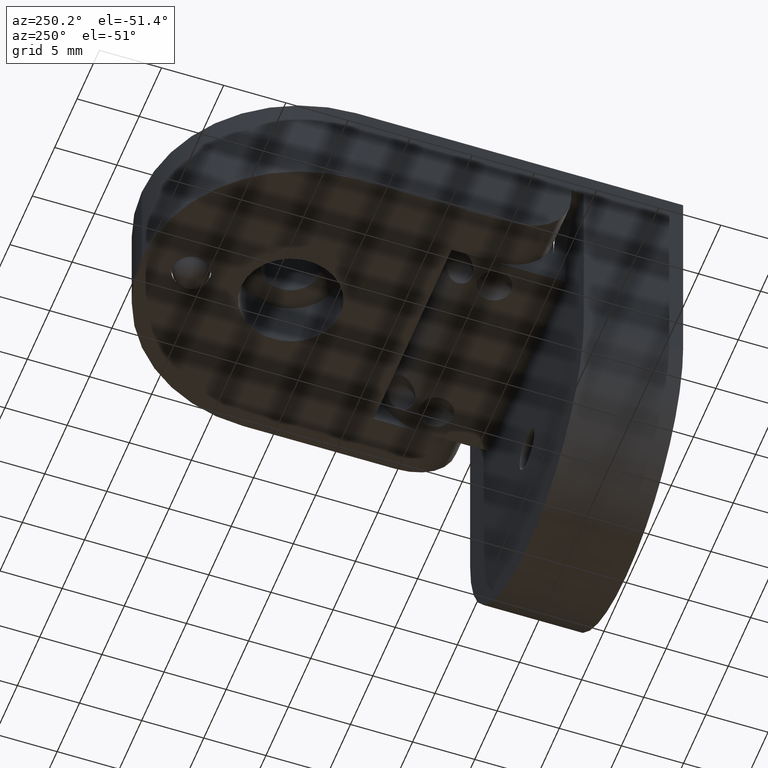
[diagram: clean part render]
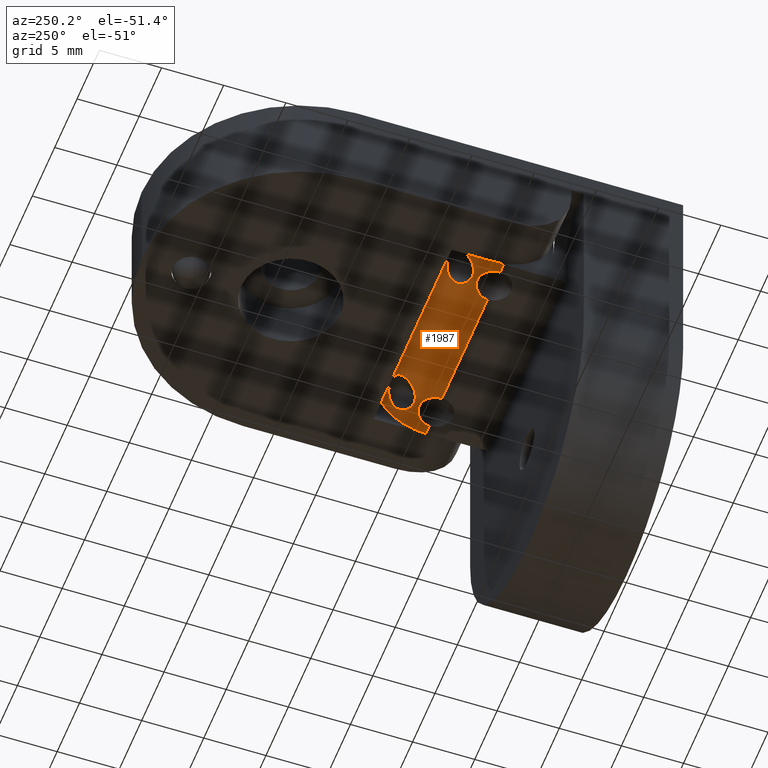
[diagram: same view with one face highlighted and labeled with its STEP entity id]
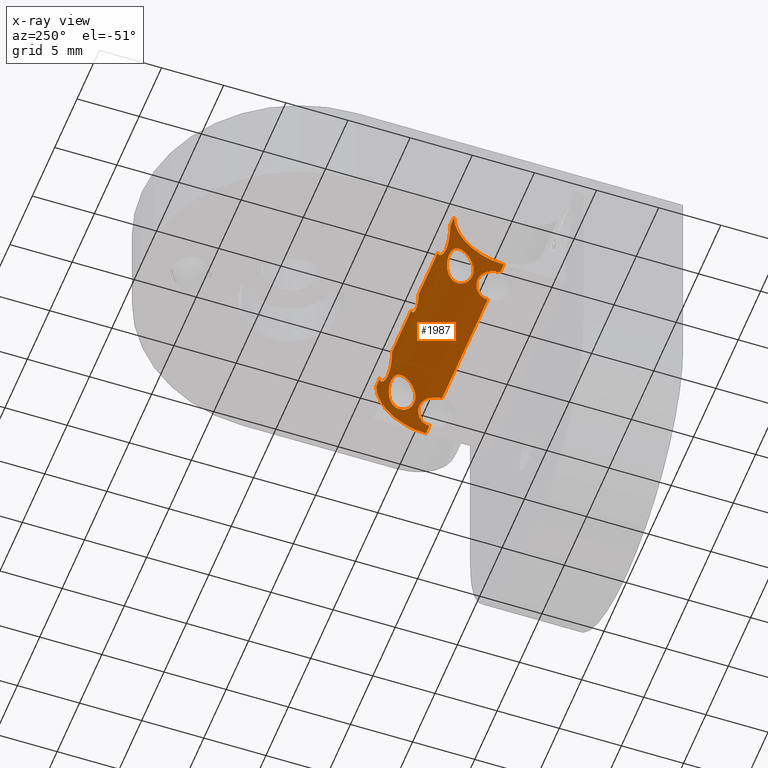
[diagram: x-ray of the same camera — body ghosted, the highlighted face saturated]
A machine part, auxiliary view. The second image highlights one B-rep face of the part: STEP entity #1987.
The next image is the same camera in x-ray: the body ghosted, the highlighted face saturated — about 0% of this face is hidden behind the body in this view.
In plain terms, the highlighted cylindrical surface (partial cylindrical patch) has radius 4 mm, axis along (-1, 0, 0).
Its self-contained STEP definition (entity closure, byte-faithful):
#15 = EDGE_CURVE ( 'NONE', #1526, #1642, #1170, .T. ) ;
#19 = CARTESIAN_POINT ( 'NONE',  ( 0.7999999999999885000, 17.00000000000000000, -4.000000000000001800 ) ) ;
#29 = CARTESIAN_POINT ( 'NONE',  ( -6.318382167521518200, 16.60091433237290600, -5.741669574684578900 ) ) ;
#38 = CARTESIAN_POINT ( 'NONE',  ( -6.139455517928616300, 16.58679575494123200, -5.771752067851502400 ) ) ;
#45 = CARTESIAN_POINT ( 'NONE',  ( -7.820452986001513700, 16.98952284015225400, -4.322431394678413400 ) ) ;
#51 = CARTESIAN_POINT ( 'NONE',  ( -5.886658571533004600, 16.54228656191221700, -5.858294435146447700 ) ) ;
#53 = CARTESIAN_POINT ( 'NONE',  ( 7.717006904152584400, 15.30491684231047100, -7.269960486161280300 ) ) ;
#60 = EDGE_CURVE ( 'NONE', #1171, #1526, #1228, .T. ) ;
#64 = ORIENTED_EDGE ( 'NONE', *, *, #808, .F. ) ;
#73 = AXIS2_PLACEMENT_3D ( 'NONE', #1293, #2566, #2613 ) ;
#79 = B_SPLINE_CURVE_WITH_KNOTS ( 'NONE', 3,
 ( #872, #672, #630, #622, #579, #2838, #494, #488, #479, #469, #460, #447, #428, #421, #408, #400, #390, #382, #277, #270, #234, #203, #51, #38, #29, #615 ),
 .UNSPECIFIED., .F., .F.,
 ( 4, 2, 2, 2, 2, 2, 2, 2, 2, 2, 2, 2, 4 ),
 ( 0.004300040857756044800, 0.004837284151750746400, 0.005374527445745448000, 0.005643149092742798800, 0.005911770739740149600, 0.006180392386737500400, 0.006449014033734854600, 0.006717635680732209800, 0.006986257327729564900, 0.007523500621724270800, 0.007792122268721623400, 0.008060743915718975000, 0.008597987209713680100 ),
 .UNSPECIFIED. ) ;
#83 = CARTESIAN_POINT ( 'NONE',  ( 6.140442905052626800, 16.58691800394359500, -5.771504403620029100 ) ) ;
#91 = VERTEX_POINT ( 'NONE', #2200 ) ;
#92 = CARTESIAN_POINT ( 'NONE',  ( 5.133476925075808800, 15.56721631803293900, -7.068742261541982200 ) ) ;
#94 = EDGE_CURVE ( 'NONE', #1705, #859, #2693, .T. ) ;
#95 = CARTESIAN_POINT ( 'NONE',  ( -7.716492937167974000, 16.27041913305914300, -6.304262048525910900 ) ) ;
#96 = VERTEX_POINT ( 'NONE', #2140 ) ;
#97 = ORIENTED_EDGE ( 'NONE', *, *, #358, .F. ) ;
#100 = CARTESIAN_POINT ( 'NONE',  ( 7.762212572483775800, 15.36769274088959700, -7.225018143983781700 ) ) ;
#108 = CARTESIAN_POINT ( 'NONE',  ( -6.679272370271416300, 14.74167003277798900, -7.600914536187041800 ) ) ;
#111 = CARTESIAN_POINT ( 'NONE',  ( 6.664705454402899900, 16.83306312811038600, -5.143515220238390900 ) ) ;
#124 = ORIENTED_EDGE ( 'NONE', *, *, #1289, .T. ) ;
#135 = CARTESIAN_POINT ( 'NONE',  ( -8.699999999999997500, 17.00000000000000000, -4.000000000000001800 ) ) ;
#143 = CARTESIAN_POINT ( 'NONE',  ( 7.195013254141744400, 14.88609512964043400, -7.527997512433667100 ) ) ;
#163 = CARTESIAN_POINT ( 'NONE',  ( -8.699999999999997500, 13.00000000000000200, -8.000000000000001800 ) ) ;
#168 = ORIENTED_EDGE ( 'NONE', *, *, #1536, .F. ) ;
#174 = ORIENTED_EDGE ( 'NONE', *, *, #15, .F. ) ;
#180 = LINE ( 'NONE', #853, #748 ) ;
#203 = CARTESIAN_POINT ( 'NONE',  ( -5.806221577427847600, 16.52372241819549400, -5.893574210680631300 ) ) ;
#210 = VERTEX_POINT ( 'NONE', #2498 ) ;
#213 = CARTESIAN_POINT ( 'NONE',  ( -7.876637756341044600, 17.00000000000000000, -4.163535705612695800 ) ) ;
#234 = CARTESIAN_POINT ( 'NONE',  ( -5.653069864009796500, 16.47790103064586400, -5.976473473862144600 ) ) ;
#264 = LINE ( 'NONE', #163, #1397 ) ;
#270 = CARTESIAN_POINT ( 'NONE',  ( -5.580092471060828200, 16.45039271049087000, -6.024478276832146800 ) ) ;
#277 = CARTESIAN_POINT ( 'NONE',  ( -5.381905048842762400, 16.35537258346926100, -6.180908853207314200 ) ) ;
#304 = CARTESIAN_POINT ( 'NONE',  ( -6.681706333184859400, 16.60091433237290200, -5.741669574684576300 ) ) ;
#312 = CARTESIAN_POINT ( 'NONE',  ( 5.806942411849719000, 16.52388838682907500, -5.893258442062800900 ) ) ;
#315 = CARTESIAN_POINT ( 'NONE',  ( 7.836682726186089600, 15.49774932186390000, -7.125373460790608100 ) ) ;
#316 = LINE ( 'NONE', #2666, #2569 ) ;
#318 = CARTESIAN_POINT ( 'NONE',  ( 5.273171676505652000, 15.30489333644196700, -7.273327754680172700 ) ) ;
#319 = CARTESIAN_POINT ( 'NONE',  ( -7.874001397343241700, 16.07517937900376700, -6.563194278009643100 ) ) ;
#321 = CARTESIAN_POINT ( 'NONE',  ( 7.865716573906202500, 15.56521257859854800, -7.070399137277983700 ) ) ;
#329 = CARTESIAN_POINT ( 'NONE',  ( 7.899999999999999500, 16.99999999999999600, -4.000000000000001800 ) ) ;
#332 = CARTESIAN_POINT ( 'NONE',  ( 7.140896538631326800, 16.87018210877258500, -5.012236768783737700 ) ) ;
#335 = VECTOR ( 'NONE', #1891, 1000.000000000000000 ) ;
#336 = DIRECTION ( 'NONE',  ( -1.000000000000000000, 0.0000000000000000000, 0.0000000000000000000 ) ) ;
#344 = CARTESIAN_POINT ( 'NONE',  ( 6.860535555108535600, 14.77190904578186300, -7.586705956622027200 ) ) ;
#358 = EDGE_CURVE ( 'NONE', #2239, #2237, #809, .T. ) ;
#364 = CARTESIAN_POINT ( 'NONE',  ( 7.611106280067669900, 15.18459448814342100, -7.351541459298389600 ) ) ;
#373 = CARTESIAN_POINT ( 'NONE',  ( -0.7999999999999939400, 16.99999999999999600, -4.000000000000001800 ) ) ;
#382 = CARTESIAN_POINT ( 'NONE',  ( -5.272928427742660200, 16.27292157095829200, -6.305402148005546400 ) ) ;
#387 = CARTESIAN_POINT ( 'NONE',  ( -6.500000000000000000, 14.31468439624437700, -7.777777777777775000 ) ) ;
#390 = CARTESIAN_POINT ( 'NONE',  ( -5.161990477745197500, 16.12314233646701900, -6.500541064366968800 ) ) ;
#400 = CARTESIAN_POINT ( 'NONE',  ( -5.133166854354044500, 16.06800122472241200, -6.568091302520241600 ) ) ;
#408 = CARTESIAN_POINT ( 'NONE',  ( -5.095238534409604700, 15.95224146439736800, -6.700369380079558300 ) ) ;
#411 = VERTEX_POINT ( 'NONE', #2085 ) ;
#421 = CARTESIAN_POINT ( 'NONE',  ( -5.085633497215594500, 15.89126265331299100, -6.765659569607543700 ) ) ;
#425 = CARTESIAN_POINT ( 'NONE',  ( 6.141219329124271400, 14.28396623279008900, -7.788888169973281700 ) ) ;
#428 = CARTESIAN_POINT ( 'NONE',  ( -5.085943017512735600, 15.76256585675604100, -6.894218801764997000 ) ) ;
#447 = CARTESIAN_POINT ( 'NONE',  ( -5.095895075451091200, 15.69711041124467400, -6.955209276033287800 ) ) ;
#460 = CARTESIAN_POINT ( 'NONE',  ( -5.134283426093795700, 15.56521257859855300, -7.070399137277982900 ) ) ;
#461 = CARTESIAN_POINT ( 'NONE',  ( -0.4909850330889615800, 16.94913227634451000, -4.640303191714278500 ) ) ;
#469 = CARTESIAN_POINT ( 'NONE',  ( -5.163317273813909500, 15.49774932186390300, -7.125373460790607200 ) ) ;
#477 = CARTESIAN_POINT ( 'NONE',  ( -5.085786437626906900, 13.18015696171152300, -8.000000000000001800 ) ) ;
#479 = CARTESIAN_POINT ( 'NONE',  ( -5.237787427516225100, 15.36769274088958800, -7.225018143983781700 ) ) ;
#488 = CARTESIAN_POINT ( 'NONE',  ( -5.282993095847415600, 15.30491684231047100, -7.269960486161279400 ) ) ;
#494 = CARTESIAN_POINT ( 'NONE',  ( -5.388893719932326600, 15.18459448814342000, -7.351541459298388800 ) ) ;
#515 = CARTESIAN_POINT ( 'NONE',  ( 5.581420459094665000, 16.45094123791720300, -6.023543008796985500 ) ) ;
#516 = CARTESIAN_POINT ( 'NONE',  ( -6.500000104110654300, 16.60091453618704800, -5.741670032777983000 ) ) ;
#519 = CARTESIAN_POINT ( 'NONE',  ( 5.647393717304554500, 14.97147111647216600, -7.482570872359293200 ) ) ;
#520 = EDGE_CURVE ( 'NONE', #96, #2828, #1540, .T. ) ;
#521 = CARTESIAN_POINT ( 'NONE',  ( -7.914358130279306500, 15.76649788671552200, -6.890420615103247200 ) ) ;
#523 = CARTESIAN_POINT ( 'NONE',  ( 7.904104924548907900, 15.69711041124467100, -6.955209276033290400 ) ) ;
#534 = LINE ( 'NONE', #848, #2841 ) ;
#540 = CARTESIAN_POINT ( 'NONE',  ( 8.699999999999997500, 17.00000000000000000, -4.000000000000001800 ) ) ;
#541 = CARTESIAN_POINT ( 'NONE',  ( 7.543642238309421300, 16.93393849979382900, -4.731285216773887500 ) ) ;
#553 = CARTESIAN_POINT ( 'NONE',  ( 7.549980584043991500, 15.12696391342450800, -7.388171675508624900 ) ) ;
#579 = CARTESIAN_POINT ( 'NONE',  ( -5.647911659098742400, 14.97132005676475200, -7.482618038302939900 ) ) ;
#580 = CARTESIAN_POINT ( 'NONE',  ( 0.6986604179899069700, 16.98077460268384800, -4.403559905532816300 ) ) ;
#598 = CARTESIAN_POINT ( 'NONE',  ( -5.100000000000001400, 16.99999999999999600, -4.000000000000001800 ) ) ;
#615 = CARTESIAN_POINT ( 'NONE',  ( -6.500000104110654300, 16.60091453618704800, -5.741670032777983000 ) ) ;
#622 = CARTESIAN_POINT ( 'NONE',  ( -5.804986745858257400, 14.88609512964042900, -7.527997512433668900 ) ) ;
#630 = CARTESIAN_POINT ( 'NONE',  ( -6.139464444891463500, 14.77190904578185900, -7.586705956622027200 ) ) ;
#648 = EDGE_LOOP ( 'NONE', ( #2241, #1588, #1802, #97, #1212, #64, #2453, #124, #168, #1291, #1763, #2421, #2268, #1127, #2009, #174 ) ) ;
#649 = EDGE_CURVE ( 'NONE', #730, #2600, #316, .T. ) ;
#659 = CARTESIAN_POINT ( 'NONE',  ( -8.699999999999997500, 17.00000000000000000, -4.000000000000001800 ) ) ;
#672 = CARTESIAN_POINT ( 'NONE',  ( -6.320814944964796600, 14.74167003277799300, -7.600914536187042700 ) ) ;
#695 = CARTESIAN_POINT ( 'NONE',  ( -5.273265290234705900, 13.68454672869657300, -7.944379817756858300 ) ) ;
#696 = B_SPLINE_CURVE_WITH_KNOTS ( 'NONE', 3,
 ( #516, #304, #742, #2260, #965, #2492, #1176, #2730, #1394, #95, #1607, #319, #1834, #521, #2053, #754, #2267, #972, #2499, #1185, #2737, #1402, #108, #1615 ),
 .UNSPECIFIED., .F., .F.,
 ( 4, 2, 2, 2, 2, 2, 2, 2, 2, 2, 2, 4 ),
 ( 1.559048062255313100E-010, 0.0005375052436362088300, 0.0008062577875019103600, 0.001075010331367611900, 0.001343762875233313400, 0.001612515419099015200, 0.002150020506830411700, 0.002418773050696114800, 0.002687525594561817400, 0.003225030682293226500, 0.003762535770024635600, 0.004300040857756044800 ),
 .UNSPECIFIED. ) ;
#705 = CARTESIAN_POINT ( 'NONE',  ( 7.914056982487262600, 15.76256585675604100, -6.894218801764996100 ) ) ;
#712 = DIRECTION ( 'NONE',  ( 1.000000000000000000, -0.0000000000000000000, -0.0000000000000000000 ) ) ;
#725 = EDGE_CURVE ( 'NONE', #2600, #2371, #2495, .T. ) ;
#730 = VERTEX_POINT ( 'NONE', #1325 ) ;
#735 = B_SPLINE_CURVE_WITH_KNOTS ( 'NONE', 3,
 ( #1843, #2059, #760, #2277, #975, #2506, #1195, #2749, #1406, #111, #1627, #332, #1848, #541, #2070, #767, #2287, #991 ),
 .UNSPECIFIED., .F., .F.,
 ( 4, 2, 2, 2, 2, 2, 2, 2, 4 ),
 ( 1.989396613188505700E-007, 0.0004929011163447962300, 0.0009856032930282735600, 0.001478305469711750900, 0.001971007646395228000, 0.002463709823078705100, 0.002956411999762182700, 0.003449114176445660300, 0.003941816353129137800 ),
 .UNSPECIFIED. ) ;
#739 = CARTESIAN_POINT ( 'NONE',  ( 5.389361077647398800, 16.35183819549946100, -6.184134978738038400 ) ) ;
#742 = CARTESIAN_POINT ( 'NONE',  ( -6.859557094947372300, 16.58691800394359800, -5.771504403620029100 ) ) ;
#746 = CARTESIAN_POINT ( 'NONE',  ( 6.681617832478481800, 16.60091433237290900, -5.741669574684579800 ) ) ;
#748 = VECTOR ( 'NONE', #1455, 1000.000000000000000 ) ;
#751 = CARTESIAN_POINT ( 'NONE',  ( 6.139377564993257200, 14.77187706162500400, -7.586725894088986300 ) ) ;
#754 = CARTESIAN_POINT ( 'NONE',  ( -7.866523074924192100, 15.56721631803294400, -7.068742261541984800 ) ) ;
#758 = CARTESIAN_POINT ( 'NONE',  ( 7.914366502784401900, 15.89126265331298700, -6.765659569607542800 ) ) ;
#760 = CARTESIAN_POINT ( 'NONE',  ( 5.179202922039146500, 16.98959164012509500, -4.321879941962406800 ) ) ;
#767 = CARTESIAN_POINT ( 'NONE',  ( 7.819685236036296100, 16.98937179796636300, -4.324001266198640000 ) ) ;
#808 = EDGE_CURVE ( 'NONE', #1705, #1180, #534, .T. ) ;
#809 = LINE ( 'NONE', #135, #2481 ) ;
#815 = VERTEX_POINT ( 'NONE', #1554 ) ;
#817 = CARTESIAN_POINT ( 'NONE',  ( -7.899999999999999500, 17.00000000000000000, -4.000000000000001800 ) ) ;
#832 = EDGE_CURVE ( 'NONE', #2827, #210, #79, .T. ) ;
#848 = CARTESIAN_POINT ( 'NONE',  ( -8.699999999999997500, 13.00000000000000200, -8.000000000000001800 ) ) ;
#853 = CARTESIAN_POINT ( 'NONE',  ( -8.699999999999997500, 13.00000000000000200, -8.000000000000001800 ) ) ;
#859 = VERTEX_POINT ( 'NONE', #1023 ) ;
#872 = CARTESIAN_POINT ( 'NONE',  ( -6.500000000000000000, 14.74167003277798700, -7.600914536187041800 ) ) ;
#897 = EDGE_CURVE ( 'NONE', #730, #1642, #2650, .T. ) ;
#901 = AXIS2_PLACEMENT_3D ( 'NONE', #2197, #2657, #2433 ) ;
#911 = B_SPLINE_CURVE_WITH_KNOTS ( 'NONE', 3,
 ( #1776, #477, #1996, #695, #2213, #918, #2443, #1132, #2673, #1352 ),
 .UNSPECIFIED., .F., .F.,
 ( 4, 2, 2, 2, 4 ),
 ( 8.707623214067304900E-005, 0.0006248907075990310300, 0.001162705183057388900, 0.001700519658515746900, 0.002238334133974105100 ),
 .UNSPECIFIED. ) ;
#918 = CARTESIAN_POINT ( 'NONE',  ( -5.647084398996881300, 14.06825694222816000, -7.856654702616262800 ) ) ;
#927 = CARTESIAN_POINT ( 'NONE',  ( 5.100000000000002300, 17.00000000000000000, -4.000000000000001800 ) ) ;
#934 = CARTESIAN_POINT ( 'NONE',  ( 7.904761465590392600, 15.95224146439736000, -6.700369380079557400 ) ) ;
#963 = CARTESIAN_POINT ( 'NONE',  ( 5.237136458888440600, 16.22427584979191200, -6.368695532232136400 ) ) ;
#965 = CARTESIAN_POINT ( 'NONE',  ( -7.193057588150280100, 16.52388838682907800, -5.893258442062802700 ) ) ;
#967 = CARTESIAN_POINT ( 'NONE',  ( 6.499999895889344800, 16.60091453618704800, -5.741670032777983000 ) ) ;
#970 = CARTESIAN_POINT ( 'NONE',  ( 6.500000000000000000, 14.74167003277798700, -7.600914536187041800 ) ) ;
#972 = CARTESIAN_POINT ( 'NONE',  ( -7.726828323494348000, 15.30489333644196700, -7.273327754680173600 ) ) ;
#975 = CARTESIAN_POINT ( 'NONE',  ( 5.455853210539384400, 16.93402179524601800, -4.730902120413689200 ) ) ;
#991 = CARTESIAN_POINT ( 'NONE',  ( 7.899999999999999500, 16.99999999999999600, -4.000000000000001800 ) ) ;
#1023 = CARTESIAN_POINT ( 'NONE',  ( 6.500000000000000000, 14.31468439624436200, -7.777777777777779500 ) ) ;
#1044 = CARTESIAN_POINT ( 'NONE',  ( 5.085786437626906000, 13.00000000000000200, -8.000000000000001800 ) ) ;
#1057 = CARTESIAN_POINT ( 'NONE',  ( 6.499999895889344800, 16.60091453618704800, -5.741670032777983000 ) ) ;
#1059 = CARTESIAN_POINT ( 'NONE',  ( 7.914213562373092300, 13.00000000000000200, -8.000000000000001800 ) ) ;
#1062 = ORIENTED_EDGE ( 'NONE', *, *, #2595, .T. ) ;
#1127 = ORIENTED_EDGE ( 'NONE', *, *, #649, .F. ) ;
#1132 = CARTESIAN_POINT ( 'NONE',  ( -6.141106851814955200, 14.28393868809554800, -7.788897655917966600 ) ) ;
#1147 = CARTESIAN_POINT ( 'NONE',  ( 7.866833145645951900, 16.06800122472241600, -6.568091302520240800 ) ) ;
#1167 = CARTESIAN_POINT ( 'NONE',  ( 6.499999895889344800, 16.60091453618704800, -5.741670032777983000 ) ) ;
#1170 = LINE ( 'NONE', #659, #1200 ) ;
#1171 = VERTEX_POINT ( 'NONE', #1475 ) ;
#1175 = CARTESIAN_POINT ( 'NONE',  ( 5.086080587893120800, 15.95663312732150800, -6.700090388873290300 ) ) ;
#1176 = CARTESIAN_POINT ( 'NONE',  ( -7.418579540905332300, 16.45094123791720300, -6.023543008796986300 ) ) ;
#1180 = VERTEX_POINT ( 'NONE', #1970 ) ;
#1185 = CARTESIAN_POINT ( 'NONE',  ( -7.352606282695445500, 14.97147111647217500, -7.482570872359294100 ) ) ;
#1187 = EDGE_CURVE ( 'NONE', #815, #91, #1602, .T. ) ;
#1193 = FACE_OUTER_BOUND ( 'NONE', #648, .T. ) ;
#1195 = CARTESIAN_POINT ( 'NONE',  ( 5.859553180941035500, 16.87011893490811700, -5.012478671399457600 ) ) ;
#1200 = VECTOR ( 'NONE', #2363, 1000.000000000000000 ) ;
#1212 = ORIENTED_EDGE ( 'NONE', *, *, #2299, .F. ) ;
#1228 = B_SPLINE_CURVE_WITH_KNOTS ( 'NONE', 3,
 ( #19, #2775, #2840, #580, #2787, #2647, #2218, #2160, #2131, #1882, #1765, #1872, #461, #1758, #1649, #1440 ),
 .UNSPECIFIED., .F., .F.,
 ( 4, 2, 2, 2, 2, 2, 2, 4 ),
 ( 0.0000000000000000000, 0.0003133526696008416000, 0.0006267053392016832100, 0.0009400580088025248100, 0.001253410678403366400, 0.001566763348004208000, 0.001880116017605049800, 0.002506821356806732800 ),
 .UNSPECIFIED. ) ;
#1234 = CARTESIAN_POINT ( 'NONE',  ( 8.699999999999997500, 13.00000000000000200, -4.000000000000001800 ) ) ;
#1286 = CARTESIAN_POINT ( 'NONE',  ( 6.500000000000000000, 14.31468439624436200, -7.777777777777779500 ) ) ;
#1289 = EDGE_CURVE ( 'NONE', #859, #1447, #2774, .T. ) ;
#1291 = ORIENTED_EDGE ( 'NONE', *, *, #1858, .T. ) ;
#1293 = CARTESIAN_POINT ( 'NONE',  ( -8.699999999999997500, 13.00000000000000200, -4.000000000000001800 ) ) ;
#1301 = CARTESIAN_POINT ( 'NONE',  ( 5.648256904983428600, 14.06916711998972000, -7.856415255020581700 ) ) ;
#1316 = CARTESIAN_POINT ( 'NONE',  ( 6.680755109306689500, 14.31468439624435400, -7.777777777777780300 ) ) ;
#1325 = CARTESIAN_POINT ( 'NONE',  ( -7.899999999999999500, 17.00000000000000000, -4.000000000000001800 ) ) ;
#1347 = CARTESIAN_POINT ( 'NONE',  ( 6.860116903704983400, 14.28347005936817600, -7.789047009408883500 ) ) ;
#1352 = CARTESIAN_POINT ( 'NONE',  ( -6.500000000000000000, 14.31468439624437700, -7.777777777777775000 ) ) ;
#1354 = CARTESIAN_POINT ( 'NONE',  ( 7.196337662458018000, 14.16045422181588800, -7.828513893389265700 ) ) ;
#1392 = CARTESIAN_POINT ( 'NONE',  ( 5.095290887579152700, 15.69998233483739200, -6.952604626920858300 ) ) ;
#1394 = CARTESIAN_POINT ( 'NONE',  ( -7.610638922352600300, 16.35183819549946800, -6.184134978738041100 ) ) ;
#1397 = VECTOR ( 'NONE', #2183, 1000.000000000000000 ) ;
#1398 = CARTESIAN_POINT ( 'NONE',  ( 7.838009522254801600, 16.12314233646701900, -6.500541064366966100 ) ) ;
#1402 = CARTESIAN_POINT ( 'NONE',  ( -6.860622435006741100, 14.77187706162500000, -7.586725894088986300 ) ) ;
#1406 = CARTESIAN_POINT ( 'NONE',  ( 6.336279987595046000, 16.83303183011186400, -5.143620125892126400 ) ) ;
#1409 = ORIENTED_EDGE ( 'NONE', *, *, #2142, .T. ) ;
#1415 = CARTESIAN_POINT ( 'NONE',  ( 6.500000000000000000, 14.74167003277798700, -7.600914536187041800 ) ) ;
#1440 = CARTESIAN_POINT ( 'NONE',  ( -0.7999999999999939400, 16.99999999999999600, -4.000000000000001800 ) ) ;
#1441 = DIRECTION ( 'NONE',  ( 0.0000000000000000000, 0.0000000000000000000, 1.000000000000000000 ) ) ;
#1447 = VERTEX_POINT ( 'NONE', #1044 ) ;
#1454 = CARTESIAN_POINT ( 'NONE',  ( -8.699999999999997500, 13.00000000000000200, -8.000000000000001800 ) ) ;
#1455 = DIRECTION ( 'NONE',  ( 1.000000000000000000, -0.0000000000000000000, -0.0000000000000000000 ) ) ;
#1463 = CARTESIAN_POINT ( 'NONE',  ( 7.352905341697898200, 14.06814649450995500, -7.856667188151811300 ) ) ;
#1471 = CARTESIAN_POINT ( 'NONE',  ( 7.617047943566802800, 13.83164662808003500, -7.914483697744036500 ) ) ;
#1475 = CARTESIAN_POINT ( 'NONE',  ( 0.7999999999999885000, 17.00000000000000000, -4.000000000000001800 ) ) ;
#1484 = CARTESIAN_POINT ( 'NONE',  ( 7.726138523949513700, 13.68559501634806000, -7.944212732372131200 ) ) ;
#1495 = CARTESIAN_POINT ( 'NONE',  ( -7.654765512227056600, 16.95651995395462600, -4.605148205260167800 ) ) ;
#1496 = CARTESIAN_POINT ( 'NONE',  ( 7.837392509356092800, 13.44189563395008900, -7.976360383548978900 ) ) ;
#1500 = FACE_BOUND ( 'NONE', #1888, .T. ) ;
#1511 = CARTESIAN_POINT ( 'NONE',  ( -7.140475643019054400, 16.87011665507822000, -5.012489956784767400 ) ) ;
#1514 = CARTESIAN_POINT ( 'NONE',  ( 7.866310089089893200, 13.35523607969152400, -7.985159962515197700 ) ) ;
#1524 = CARTESIAN_POINT ( 'NONE',  ( -7.544058526582977800, 16.93400751400075400, -4.730966301207756100 ) ) ;
#1525 = CARTESIAN_POINT ( 'NONE',  ( 7.904446523745948000, 13.18021450585004200, -7.996900715683336700 ) ) ;
#1526 = VERTEX_POINT ( 'NONE', #373 ) ;
#1535 = CARTESIAN_POINT ( 'NONE',  ( 7.914213562373092300, 13.00000000000000200, -8.000000000000001800 ) ) ;
#1536 = EDGE_CURVE ( 'NONE', #411, #1447, #180, .T. ) ;
#1540 = B_SPLINE_CURVE_WITH_KNOTS ( 'NONE', 3,
 ( #1415, #2765, #344, #143, #1681, #553, #364, #53, #100, #315, #321, #523, #705, #758, #934, #1147, #1398, #1610, #1836, #2048, #2055, #2227, #2502, #2741, #746, #967 ),
 .UNSPECIFIED., .F., .F.,
 ( 4, 2, 2, 2, 2, 2, 2, 2, 2, 2, 2, 2, 4 ),
 ( 0.004300040857756045600, 0.004837284151750747200, 0.005374527445745449700, 0.005643149092742800500, 0.005911770739740151300, 0.006180392386737502100, 0.006449014033734856400, 0.006717635680732211500, 0.006986257327729566600, 0.007523500621724271700, 0.007792122268721625100, 0.008060743915718978500, 0.008597987209713683600 ),
 .UNSPECIFIED. ) ;
#1544 = CARTESIAN_POINT ( 'NONE',  ( -6.829637187800988900, 16.84125618595786700, -5.117000335874789300 ) ) ;
#1554 = CARTESIAN_POINT ( 'NONE',  ( -6.500000000000000000, 14.31468439624437700, -7.777777777777775000 ) ) ;
#1582 = EDGE_CURVE ( 'NONE', #2371, #91, #264, .T. ) ;
#1588 = ORIENTED_EDGE ( 'NONE', *, *, #2769, .F. ) ;
#1599 = CARTESIAN_POINT ( 'NONE',  ( 5.887258559230341200, 16.54241783172875600, -5.858044149156622600 ) ) ;
#1602 = B_SPLINE_CURVE_WITH_KNOTS ( 'NONE', 3,
 ( #387, #2596, #1713, #2861, #2826, #2816, #2805, #2790, #2663, #2651, #2640, #2630, #2619, #2608, #2582, #2557 ),
 .UNSPECIFIED., .F., .F.,
 ( 4, 2, 2, 2, 2, 2, 2, 4 ),
 ( 0.002238334133974105100, 0.002507597691416499000, 0.002776861248858892500, 0.003046124806301286900, 0.003315388363743680900, 0.003584651921186074800, 0.003853915478628468700, 0.004392442593513258400 ),
 .UNSPECIFIED. ) ;
#1606 = CARTESIAN_POINT ( 'NONE',  ( 5.161665154007764900, 15.50115388655840900, -7.122664119984303700 ) ) ;
#1607 = CARTESIAN_POINT ( 'NONE',  ( -7.762863541111557600, 16.22427584979191600, -6.368695532232138100 ) ) ;
#1610 = CARTESIAN_POINT ( 'NONE',  ( 7.727071572257338000, 16.27292157095829200, -6.305402148005547300 ) ) ;
#1615 = CARTESIAN_POINT ( 'NONE',  ( -6.500000000000000000, 14.74167003277798700, -7.600914536187041800 ) ) ;
#1627 = CARTESIAN_POINT ( 'NONE',  ( 6.831031395126325700, 16.84135941347253200, -5.116642596208429900 ) ) ;
#1642 = VERTEX_POINT ( 'NONE', #598 ) ;
#1649 = CARTESIAN_POINT ( 'NONE',  ( -0.7999999999999993800, 17.00000000000000000, -4.211951640495803100 ) ) ;
#1677 = CARTESIAN_POINT ( 'NONE',  ( -7.288112427515825300, 16.89090818671716200, -4.933573958641256100 ) ) ;
#1681 = CARTESIAN_POINT ( 'NONE',  ( 7.352088340901257600, 14.97132005676475200, -7.482618038302940800 ) ) ;
#1705 = VERTEX_POINT ( 'NONE', #1059 ) ;
#1713 = CARTESIAN_POINT ( 'NONE',  ( -6.679703935612455900, 14.30693922058723000, -7.780499340524125200 ) ) ;
#1758 = CARTESIAN_POINT ( 'NONE',  ( -0.7141449061437953300, 16.98099493598845600, -4.417390672124260400 ) ) ;
#1760 = CARTESIAN_POINT ( 'NONE',  ( 5.085786437626906000, 13.00000000000000200, -8.000000000000001800 ) ) ;
#1763 = ORIENTED_EDGE ( 'NONE', *, *, #1187, .T. ) ;
#1765 = CARTESIAN_POINT ( 'NONE',  ( -0.2089315909857745500, 16.92355676142454300, -4.779340533493234800 ) ) ;
#1769 = CARTESIAN_POINT ( 'NONE',  ( 5.085786437626906000, 13.18212803375919200, -8.000000000000001800 ) ) ;
#1776 = CARTESIAN_POINT ( 'NONE',  ( -5.085786437626906000, 13.00000000000000200, -8.000000000000001800 ) ) ;
#1802 = ORIENTED_EDGE ( 'NONE', *, *, #2621, .T. ) ;
#1810 = CYLINDRICAL_SURFACE ( 'NONE', #901, 4.000000000000000000 ) ;
#1824 = CARTESIAN_POINT ( 'NONE',  ( 5.654397284640134900, 16.47834721537039500, -5.975681538253545500 ) ) ;
#1825 = CARTESIAN_POINT ( 'NONE',  ( -8.699999999999997500, 17.00000000000000000, -4.000000000000001800 ) ) ;
#1833 = CARTESIAN_POINT ( 'NONE',  ( 5.381861823312773300, 15.18082934851049400, -7.355440596518545400 ) ) ;
#1834 = CARTESIAN_POINT ( 'NONE',  ( -7.913919412106878300, 15.95663312732151200, -6.700090388873291200 ) ) ;
#1836 = CARTESIAN_POINT ( 'NONE',  ( 7.618094951157239300, 16.35537258346926800, -6.180908853207315100 ) ) ;
#1843 = CARTESIAN_POINT ( 'NONE',  ( 5.100000000000002300, 17.00000000000000000, -4.000000000000001800 ) ) ;
#1848 = CARTESIAN_POINT ( 'NONE',  ( 7.288638629326342800, 16.89099570997441900, -4.933168030631581000 ) ) ;
#1858 = EDGE_CURVE ( 'NONE', #411, #815, #911, .T. ) ;
#1868 = CARTESIAN_POINT ( 'NONE',  ( 5.125580143114242500, 13.36095734293785900, -7.987056286481079700 ) ) ;
#1872 = CARTESIAN_POINT ( 'NONE',  ( -0.4029600097523872200, 16.93865738797728700, -4.699033123247907900 ) ) ;
#1875 = CARTESIAN_POINT ( 'NONE',  ( 5.237059156889854300, 13.60489535389662700, -7.954848748003085400 ) ) ;
#1882 = CARTESIAN_POINT ( 'NONE',  ( -0.1039698531285312400, 16.91916622361188500, -4.800085070030323900 ) ) ;
#1888 = EDGE_LOOP ( 'NONE', ( #1062, #2039 ) ) ;
#1889 = CARTESIAN_POINT ( 'NONE',  ( 5.283364166002601600, 13.68292341676195900, -7.941935492621140300 ) ) ;
#1891 = DIRECTION ( 'NONE',  ( -1.000000000000000000, 0.0000000000000000000, 0.0000000000000000000 ) ) ;
#1901 = CARTESIAN_POINT ( 'NONE',  ( 5.388878505811014500, 13.82510122695550200, -7.914645295096944400 ) ) ;
#1924 = CARTESIAN_POINT ( 'NONE',  ( 5.448531441852941800, 13.89037306435357900, -7.900128208621064000 ) ) ;
#1934 = ORIENTED_EDGE ( 'NONE', *, *, #520, .T. ) ;
#1970 = CARTESIAN_POINT ( 'NONE',  ( 8.699999999999997500, 13.00000000000000200, -8.000000000000001800 ) ) ;
#1982 = CIRCLE ( 'NONE', #2812, 4.000000000000000000 ) ;
#1987 = ADVANCED_FACE ( 'NONE', ( #1193, #2074, #1500 ), #1810, .T. ) ;
#1996 = CARTESIAN_POINT ( 'NONE',  ( -5.125485882586291500, 13.36032282694711500, -7.987092152293158200 ) ) ;
#2009 = ORIENTED_EDGE ( 'NONE', *, *, #897, .T. ) ;
#2010 = LINE ( 'NONE', #2127, #335 ) ;
#2039 = ORIENTED_EDGE ( 'NONE', *, *, #832, .T. ) ;
#2043 = CARTESIAN_POINT ( 'NONE',  ( 5.448997442740829200, 16.38762636362128700, -6.127841478237202800 ) ) ;
#2047 = B_SPLINE_CURVE_WITH_KNOTS ( 'NONE', 3,
 ( #1167, #2477, #83, #1599, #312, #1824, #515, #2043, #739, #2258, #963, #2489, #1175, #2729, #1392, #92, #1606, #318, #1833, #519, #2051, #751, #2265, #970 ),
 .UNSPECIFIED., .F., .F.,
 ( 4, 2, 2, 2, 2, 2, 2, 2, 2, 2, 2, 4 ),
 ( 1.559048062255313100E-010, 0.0005375052436362040600, 0.0008062577875019032100, 0.001075010331367602400, 0.001343762875233301500, 0.001612515419099000600, 0.002150020506830400900, 0.002418773050696105200, 0.002687525594561809100, 0.003225030682293220900, 0.003762535770024633500, 0.004300040857756045600 ),
 .UNSPECIFIED. ) ;
#2048 = CARTESIAN_POINT ( 'NONE',  ( 7.419907528939175400, 16.45039271049087800, -6.024478276832148500 ) ) ;
#2051 = CARTESIAN_POINT ( 'NONE',  ( 5.804067847952480500, 14.88647065766879500, -7.527800932393431000 ) ) ;
#2053 = CARTESIAN_POINT ( 'NONE',  ( -7.904709112420849900, 15.69998233483738800, -6.952604626920857500 ) ) ;
#2055 = CARTESIAN_POINT ( 'NONE',  ( 7.346930135990206200, 16.47790103064586700, -5.976473473862148100 ) ) ;
#2058 = VERTEX_POINT ( 'NONE', #927 ) ;
#2059 = CARTESIAN_POINT ( 'NONE',  ( 5.123586439741496100, 16.99999999999999600, -4.165105078190482100 ) ) ;
#2070 = CARTESIAN_POINT ( 'NONE',  ( 7.654476919122076100, 16.95646057358789000, -4.605379131249410600 ) ) ;
#2074 = FACE_BOUND ( 'NONE', #2426, .T. ) ;
#2085 = CARTESIAN_POINT ( 'NONE',  ( -5.085786437626906000, 13.00000000000000200, -8.000000000000001800 ) ) ;
#2127 = CARTESIAN_POINT ( 'NONE',  ( -8.699999999999997500, 17.00000000000000000, -4.000000000000001800 ) ) ;
#2131 = CARTESIAN_POINT ( 'NONE',  ( 0.1052749065454232400, 16.91920106193709500, -4.799914397730686000 ) ) ;
#2135 = CARTESIAN_POINT ( 'NONE',  ( -6.500000000000000000, 14.74167003277798700, -7.600914536187041800 ) ) ;
#2140 = CARTESIAN_POINT ( 'NONE',  ( 6.500000000000000000, 14.74167003277798700, -7.600914536187041800 ) ) ;
#2142 = EDGE_CURVE ( 'NONE', #2828, #96, #2047, .T. ) ;
#2143 = CARTESIAN_POINT ( 'NONE',  ( 6.500000000000000000, 14.31468439624436200, -7.777777777777779500 ) ) ;
#2160 = CARTESIAN_POINT ( 'NONE',  ( 0.2107122736315965000, 16.92367251594781100, -4.778746717572961000 ) ) ;
#2183 = DIRECTION ( 'NONE',  ( 1.000000000000000000, -0.0000000000000000000, -0.0000000000000000000 ) ) ;
#2197 = CARTESIAN_POINT ( 'NONE',  ( -8.699999999999997500, 13.00000000000000200, -4.000000000000001800 ) ) ;
#2200 = CARTESIAN_POINT ( 'NONE',  ( -7.914213562373092300, 13.00000000000000200, -8.000000000000001800 ) ) ;
#2213 = CARTESIAN_POINT ( 'NONE',  ( -5.381960285508967000, 13.83063856050362600, -7.914715567143446200 ) ) ;
#2218 = CARTESIAN_POINT ( 'NONE',  ( 0.4030663371768148900, 16.93868871863598700, -4.698844503609009000 ) ) ;
#2227 = CARTESIAN_POINT ( 'NONE',  ( 7.193778422572156800, 16.52372241819549000, -5.893574210680633900 ) ) ;
#2237 = VERTEX_POINT ( 'NONE', #329 ) ;
#2239 = VERTEX_POINT ( 'NONE', #540 ) ;
#2241 = ORIENTED_EDGE ( 'NONE', *, *, #60, .F. ) ;
#2258 = CARTESIAN_POINT ( 'NONE',  ( 5.283507062832023300, 16.27041913305913900, -6.304262048525910900 ) ) ;
#2260 = CARTESIAN_POINT ( 'NONE',  ( -7.112741440769657000, 16.54241783172875200, -5.858044149156620900 ) ) ;
#2265 = CARTESIAN_POINT ( 'NONE',  ( 6.320727629728586400, 14.74167003277798900, -7.600914536187042700 ) ) ;
#2267 = CARTESIAN_POINT ( 'NONE',  ( -7.838334845992236800, 15.50115388655840600, -7.122664119984301900 ) ) ;
#2268 = ORIENTED_EDGE ( 'NONE', *, *, #725, .F. ) ;
#2277 = CARTESIAN_POINT ( 'NONE',  ( 5.345721831584784300, 16.95642261976772900, -4.605944061596485300 ) ) ;
#2287 = CARTESIAN_POINT ( 'NONE',  ( 7.876409082335467100, 17.00000000000000400, -4.165136423651747900 ) ) ;
#2299 = EDGE_CURVE ( 'NONE', #1180, #2239, #1982, .T. ) ;
#2331 = DIRECTION ( 'NONE',  ( -1.000000000000000000, 0.0000000000000000000, 0.0000000000000000000 ) ) ;
#2362 = CARTESIAN_POINT ( 'NONE',  ( 7.914213562373094000, 13.09100435406057400, -8.000000000000000000 ) ) ;
#2363 = DIRECTION ( 'NONE',  ( -1.000000000000000000, 0.0000000000000000000, 0.0000000000000000000 ) ) ;
#2371 = VERTEX_POINT ( 'NONE', #1454 ) ;
#2390 = CARTESIAN_POINT ( 'NONE',  ( -5.100000000000001400, 16.99999999999999600, -4.000000000000001800 ) ) ;
#2399 = CARTESIAN_POINT ( 'NONE',  ( -5.111681813346804000, 17.00000000000000400, -4.081772693427632600 ) ) ;
#2421 = ORIENTED_EDGE ( 'NONE', *, *, #1582, .F. ) ;
#2423 = CARTESIAN_POINT ( 'NONE',  ( -5.131204262046301400, 16.99749675993248500, -4.161526515100828000 ) ) ;
#2426 = EDGE_LOOP ( 'NONE', ( #1409, #1934 ) ) ;
#2433 = DIRECTION ( 'NONE',  ( 0.0000000000000000000, 0.0000000000000000000, 1.000000000000000000 ) ) ;
#2436 = CARTESIAN_POINT ( 'NONE',  ( -5.185666685355570800, 16.98817373332302700, -4.317082692027890200 ) ) ;
#2443 = CARTESIAN_POINT ( 'NONE',  ( -5.802135534134574600, 14.15987469580256100, -7.828698824907238700 ) ) ;
#2444 = CARTESIAN_POINT ( 'NONE',  ( -5.220960743048429700, 16.98127357475927800, -4.393074222515795500 ) ) ;
#2453 = ORIENTED_EDGE ( 'NONE', *, *, #94, .T. ) ;
#2477 = CARTESIAN_POINT ( 'NONE',  ( 6.318293666815141500, 16.60091433237290600, -5.741669574684578900 ) ) ;
#2481 = VECTOR ( 'NONE', #336, 1000.000000000000000 ) ;
#2489 = CARTESIAN_POINT ( 'NONE',  ( 5.125998602656757400, 16.07517937900376700, -6.563194278009643100 ) ) ;
#2492 = CARTESIAN_POINT ( 'NONE',  ( -7.345602715359864200, 16.47834721537039800, -5.975681538253545500 ) ) ;
#2495 = CIRCLE ( 'NONE', #73, 4.000000000000000000 ) ;
#2498 = CARTESIAN_POINT ( 'NONE',  ( -6.500000104110654300, 16.60091453618704800, -5.741670032777983000 ) ) ;
#2499 = CARTESIAN_POINT ( 'NONE',  ( -7.618138176687229400, 15.18082934851049600, -7.355440596518541900 ) ) ;
#2502 = CARTESIAN_POINT ( 'NONE',  ( 7.113341428466998000, 16.54228656191222400, -5.858294435146449400 ) ) ;
#2506 = CARTESIAN_POINT ( 'NONE',  ( 5.712034465842900300, 16.89088403268917600, -4.933684550188309500 ) ) ;
#2536 = CARTESIAN_POINT ( 'NONE',  ( 6.319194572804868000, 14.31468439624435800, -7.777777777777780300 ) ) ;
#2551 = CARTESIAN_POINT ( 'NONE',  ( -5.344978616616230300, 16.95657124998679400, -4.604756504478933400 ) ) ;
#2557 = CARTESIAN_POINT ( 'NONE',  ( -7.914213562373092300, 13.00000000000000200, -8.000000000000001800 ) ) ;
#2566 = DIRECTION ( 'NONE',  ( -1.000000000000000000, 0.0000000000000000000, -0.0000000000000000000 ) ) ;
#2569 = VECTOR ( 'NONE', #2331, 1000.000000000000000 ) ;
#2576 = CARTESIAN_POINT ( 'NONE',  ( -5.455460386027269200, 16.93410419110841000, -4.730432017460325200 ) ) ;
#2582 = CARTESIAN_POINT ( 'NONE',  ( -7.914213562373094000, 13.18070357022420000, -8.000000000000003600 ) ) ;
#2595 = EDGE_CURVE ( 'NONE', #210, #2827, #696, .T. ) ;
#2596 = CARTESIAN_POINT ( 'NONE',  ( -6.590369822495742500, 14.31468439624435800, -7.777777777777782100 ) ) ;
#2600 = VERTEX_POINT ( 'NONE', #1825 ) ;
#2601 = CARTESIAN_POINT ( 'NONE',  ( -5.710788348983117900, 16.89107771831545100, -4.932856317262682900 ) ) ;
#2608 = CARTESIAN_POINT ( 'NONE',  ( -7.874150370034697300, 13.36143539541463100, -7.986980684611816100 ) ) ;
#2613 = DIRECTION ( 'NONE',  ( 0.0000000000000000000, 0.0000000000000000000, -1.000000000000000000 ) ) ;
#2619 = CARTESIAN_POINT ( 'NONE',  ( -7.763281414008223400, 13.60420578140809600, -7.954946017943177200 ) ) ;
#2621 = EDGE_CURVE ( 'NONE', #2058, #2237, #735, .T. ) ;
#2625 = CARTESIAN_POINT ( 'NONE',  ( -6.663595188582783100, 16.83301813885965700, -5.143666016697029200 ) ) ;
#2630 = CARTESIAN_POINT ( 'NONE',  ( -7.717219614626093200, 13.68210505673094500, -7.942088410108819800 ) ) ;
#2636 = CARTESIAN_POINT ( 'NONE',  ( -5.858193951124303700, 16.87028568600300100, -5.011849901020550400 ) ) ;
#2640 = CARTESIAN_POINT ( 'NONE',  ( -7.610863622766062900, 13.82548033579429400, -7.914576676570429300 ) ) ;
#2647 = CARTESIAN_POINT ( 'NONE',  ( 0.4920772139876845000, 16.94928293732933300, -4.639287613873063900 ) ) ;
#2650 = B_SPLINE_CURVE_WITH_KNOTS ( 'NONE', 3,
 ( #817, #213, #45, #1495, #1524, #1677, #1511, #1544, #2625, #2675, #2659, #2636, #2601, #2576, #2551, #2444, #2436, #2423, #2399, #2390 ),
 .UNSPECIFIED., .F., .F.,
 ( 4, 2, 2, 2, 2, 2, 2, 2, 2, 4 ),
 ( 8.740011161657071900E-005, 0.0005804629324182984000, 0.001073525753220024600, 0.001566588574021751000, 0.002059651394823477300, 0.002552714215625203700, 0.003045777036426930000, 0.003538839857228656300, 0.003785371267629518400, 0.004031902678030380500 ),
 .UNSPECIFIED. ) ;
#2651 = CARTESIAN_POINT ( 'NONE',  ( -7.551128592480501400, 13.89064998055215300, -7.900057180595469600 ) ) ;
#2657 = DIRECTION ( 'NONE',  ( -1.000000000000000000, 0.0000000000000000000, 0.0000000000000000000 ) ) ;
#2659 = CARTESIAN_POINT ( 'NONE',  ( -6.168573014558962300, 16.84137731228263800, -5.116589386549613900 ) ) ;
#2663 = CARTESIAN_POINT ( 'NONE',  ( -7.419118099400313900, 14.00888040184220700, -7.871157932008272500 ) ) ;
#2666 = CARTESIAN_POINT ( 'NONE',  ( -8.699999999999997500, 17.00000000000000000, -4.000000000000001800 ) ) ;
#2673 = CARTESIAN_POINT ( 'NONE',  ( -6.319499529960666900, 14.31468439624436000, -7.777777777777781200 ) ) ;
#2675 = CARTESIAN_POINT ( 'NONE',  ( -6.334556937497287900, 16.83307693751388400, -5.143468933410071400 ) ) ;
#2693 = B_SPLINE_CURVE_WITH_KNOTS ( 'NONE', 3,
 ( #1535, #2362, #1525, #1514, #1496, #1484, #1471, #1463, #1354, #1347, #1316, #1286 ),
 .UNSPECIFIED., .F., .F.,
 ( 4, 2, 2, 2, 2, 4 ),
 ( 1.969997372597455400E-007, 0.0002691184337870972200, 0.0005380398678369346200, 0.001075882735936609600, 0.001613725604036284400, 0.002151568472135959600 ),
 .UNSPECIFIED. ) ;
#2729 = CARTESIAN_POINT ( 'NONE',  ( 5.085641869720696200, 15.76649788671552200, -6.890420615103248100 ) ) ;
#2730 = CARTESIAN_POINT ( 'NONE',  ( -7.551002557259169000, 16.38762636362129400, -6.127841478237204600 ) ) ;
#2737 = CARTESIAN_POINT ( 'NONE',  ( -7.195932152047520300, 14.88647065766879500, -7.527800932393431000 ) ) ;
#2741 = CARTESIAN_POINT ( 'NONE',  ( 6.860544482071387200, 16.58679575494122800, -5.771752067851504200 ) ) ;
#2749 = CARTESIAN_POINT ( 'NONE',  ( 6.169992755928069200, 16.84128559402507000, -5.116896868788051800 ) ) ;
#2765 = CARTESIAN_POINT ( 'NONE',  ( 6.679185055035204300, 14.74167003277798400, -7.600914536187040000 ) ) ;
#2769 = EDGE_CURVE ( 'NONE', #2058, #1171, #2010, .T. ) ;
#2774 = B_SPLINE_CURVE_WITH_KNOTS ( 'NONE', 3,
 ( #2143, #2536, #425, #2853, #1301, #1924, #1901, #1889, #1875, #1868, #1769, #1760 ),
 .UNSPECIFIED., .F., .F.,
 ( 4, 2, 2, 2, 2, 4 ),
 ( 0.002151568472135959600, 0.002689561062794180500, 0.003227553653452402200, 0.003496549948781512400, 0.003765546244110622200, 0.004303538834768847800 ),
 .UNSPECIFIED. ) ;
#2775 = CARTESIAN_POINT ( 'NONE',  ( 0.7999999999999878300, 17.00000000000000000, -4.105974963319376900 ) ) ;
#2787 = CARTESIAN_POINT ( 'NONE',  ( 0.6392473459159235800, 16.97030639923612600, -4.492129524126368300 ) ) ;
#2788 = DIRECTION ( 'NONE',  ( 1.000000000000000000, -0.0000000000000000000, -0.0000000000000000000 ) ) ;
#2790 = CARTESIAN_POINT ( 'NONE',  ( -7.345989856060369600, 14.06230549820616800, -7.856648886505705100 ) ) ;
#2805 = CARTESIAN_POINT ( 'NONE',  ( -7.192903501270132300, 14.15313082902324000, -7.830472933785188200 ) ) ;
#2812 = AXIS2_PLACEMENT_3D ( 'NONE', #1234, #2788, #1441 ) ;
#2816 = CARTESIAN_POINT ( 'NONE',  ( -7.112582178343823000, 14.19107745026387200, -7.818688109338811600 ) ) ;
#2826 = CARTESIAN_POINT ( 'NONE',  ( -6.944487667128147000, 14.25262163665242800, -7.798945038339314600 ) ) ;
#2827 = VERTEX_POINT ( 'NONE', #2135 ) ;
#2828 = VERTEX_POINT ( 'NONE', #1057 ) ;
#2838 = CARTESIAN_POINT ( 'NONE',  ( -5.450019415956009400, 15.12696391342451100, -7.388171675508627500 ) ) ;
#2840 = CARTESIAN_POINT ( 'NONE',  ( 0.7790440849878824700, 16.99566637046457600, -4.209945923191861900 ) ) ;
#2841 = VECTOR ( 'NONE', #712, 1000.000000000000000 ) ;
#2853 = CARTESIAN_POINT ( 'NONE',  ( 5.802220567861176000, 14.15991943249821700, -7.828685121764609200 ) ) ;
#2861 = CARTESIAN_POINT ( 'NONE',  ( -6.856332809328038500, 14.27610270549106300, -7.791019292360678300 ) ) ;